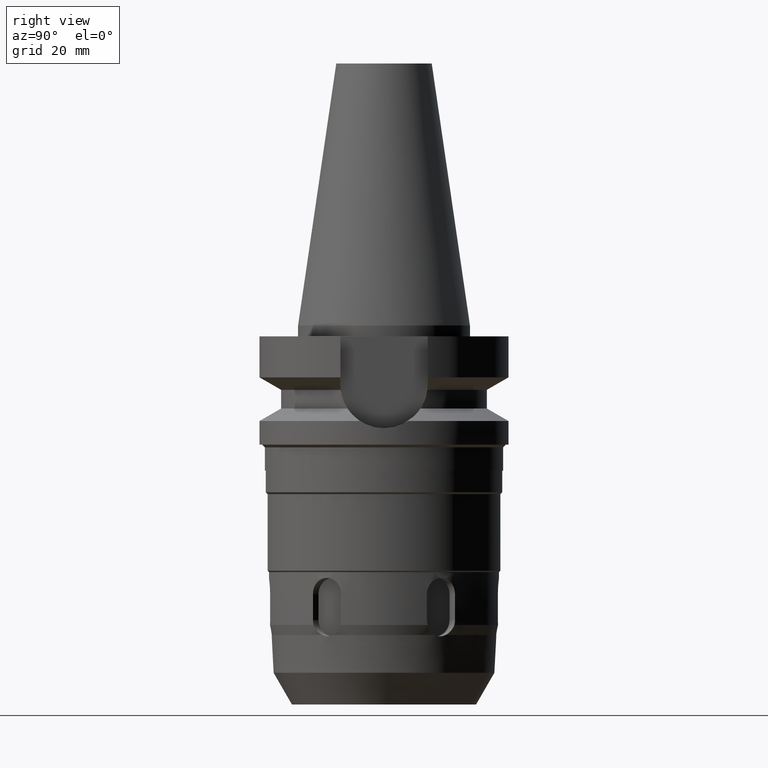
[diagram: clean part render]
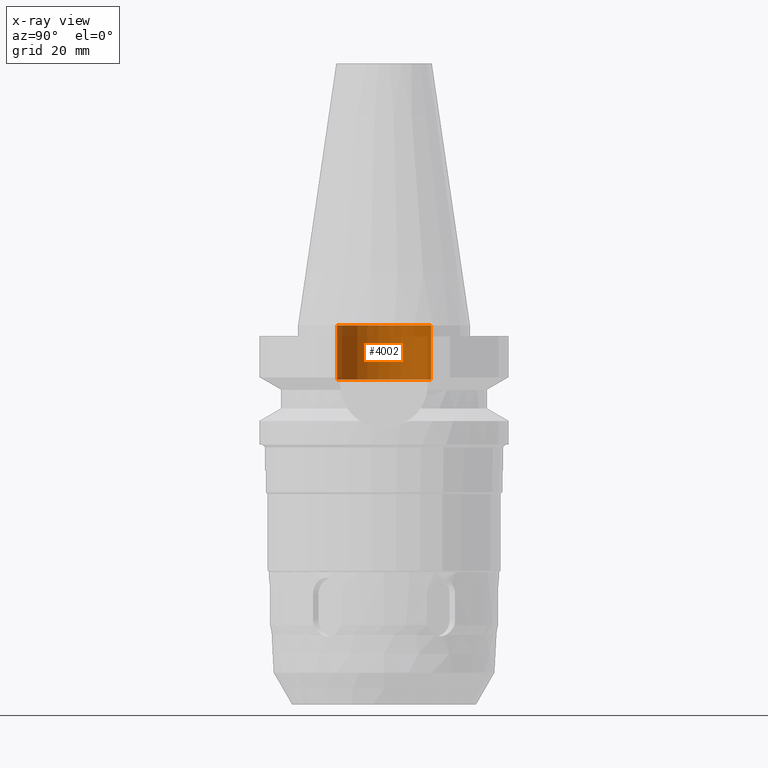
[diagram: x-ray — body ghosted, one internal face saturated and labeled with its STEP entity id]
A machine part, right view, then the same camera in x-ray: the body is ghosted and one INTERNAL B-rep face — a face not visible from any outside direction — is saturated and labeled: STEP entity #4002.
In plain terms, the highlighted cylindrical surface (partial cylindrical patch) has radius 8.7 mm, axis along (0, 0, -1).
Its self-contained STEP definition (entity closure, byte-faithful):
#1981=CARTESIAN_POINT('',(0.E0,1.889874940444E-14,-1.E1));
#1982=DIRECTION('',(0.E0,0.E0,-1.E0));
#1983=DIRECTION('',(0.E0,-1.E0,0.E0));
#1984=AXIS2_PLACEMENT_3D('',#1981,#1982,#1983);
#2013=DIRECTION('',(0.E0,0.E0,1.E0));
#2014=VECTOR('',#2013,1.E1);
#2015=CARTESIAN_POINT('',(0.E0,-8.7E0,-1.E1));
#2016=LINE('',#2015,#2014);
#2020=CARTESIAN_POINT('',(0.E0,1.889874940444E-14,-1.421085471520E-14));
#2021=DIRECTION('',(0.E0,0.E0,-1.E0));
#2022=DIRECTION('',(0.E0,-1.E0,0.E0));
#2023=AXIS2_PLACEMENT_3D('',#2020,#2021,#2022);
#2028=DIRECTION('',(0.E0,0.E0,1.E0));
#2029=VECTOR('',#2028,1.E1);
#2030=CARTESIAN_POINT('',(0.E0,8.7E0,-1.E1));
#2031=LINE('',#2030,#2029);
#2367=CARTESIAN_POINT('',(0.E0,8.7E0,0.E0));
#2368=VERTEX_POINT('',#2367);
#2369=CARTESIAN_POINT('',(0.E0,-8.7E0,0.E0));
#2370=VERTEX_POINT('',#2369);
#2371=CARTESIAN_POINT('',(0.E0,8.7E0,-1.E1));
#2372=VERTEX_POINT('',#2371);
#2373=CARTESIAN_POINT('',(0.E0,-8.7E0,-1.E1));
#2374=VERTEX_POINT('',#2373);
#3988=CARTESIAN_POINT('',(0.E0,1.889874940444E-14,5.432E1));
#3989=DIRECTION('',(0.E0,0.E0,-1.E0));
#3990=DIRECTION('',(0.E0,-1.E0,0.E0));
#3991=AXIS2_PLACEMENT_3D('',#3988,#3989,#3990);
#3992=CYLINDRICAL_SURFACE('',#3991,8.7E0);
#3994=ORIENTED_EDGE('',*,*,#3993,.F.);
#3995=ORIENTED_EDGE('',*,*,#3977,.F.);
#3997=ORIENTED_EDGE('',*,*,#3996,.T.);
#3999=ORIENTED_EDGE('',*,*,#3998,.T.);
#4000=EDGE_LOOP('',(#3994,#3995,#3997,#3999));
#4001=FACE_OUTER_BOUND('',#4000,.F.);
#1985=CIRCLE('',#1984,8.7E0);
#2024=CIRCLE('',#2023,8.7E0);
#3977=EDGE_CURVE('',#2374,#2372,#1985,.T.);
#3993=EDGE_CURVE('',#2372,#2368,#2031,.T.);
#3996=EDGE_CURVE('',#2374,#2370,#2016,.T.);
#3998=EDGE_CURVE('',#2370,#2368,#2024,.T.);
#4002=ADVANCED_FACE('',(#4001),#3992,.F.);